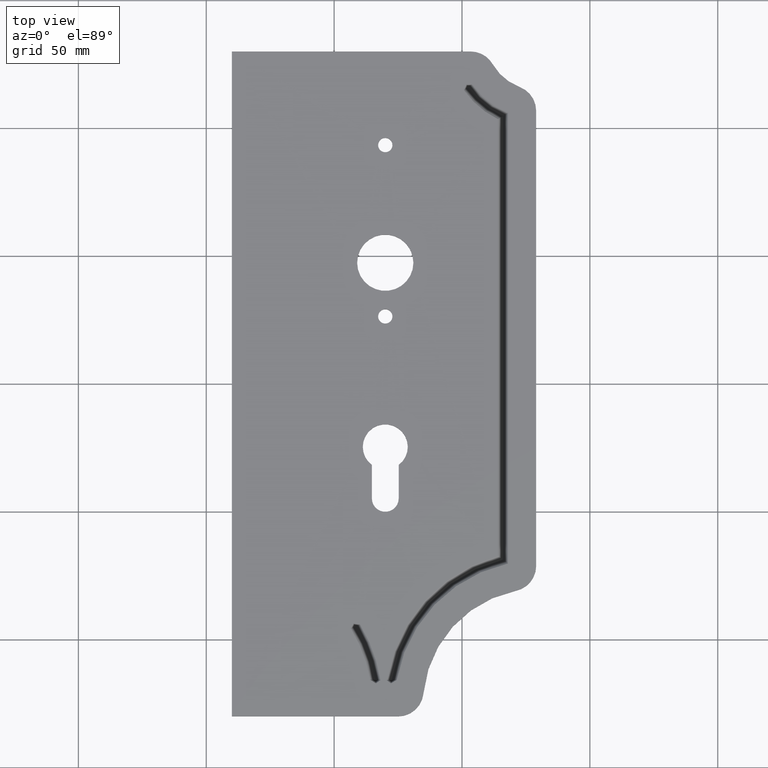
[diagram: clean part render]
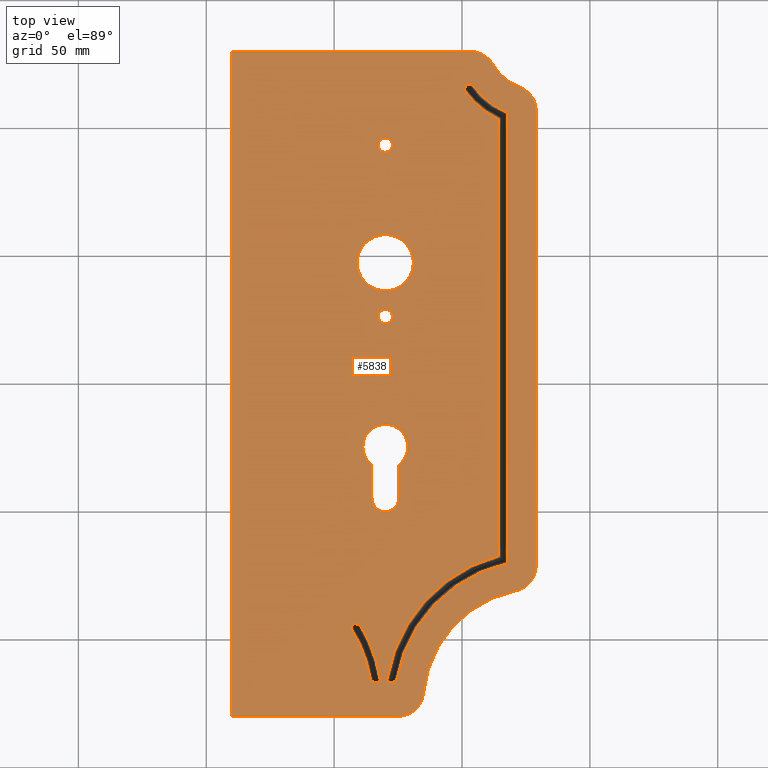
[diagram: same view with one face highlighted and labeled with its STEP entity id]
A machine part, top view. The second image highlights one B-rep face of the part: STEP entity #5838.
In plain terms, the highlighted planar face has unit normal (0, 0, 1).
Its self-contained STEP definition (entity closure, byte-faithful):
#29 = CARTESIAN_POINT ( 'NONE',  ( 109.3191852192213105, -93.96832662858865604, 3.999999999999998224 ) ) ;
#49 = CARTESIAN_POINT ( 'NONE',  ( 60.00000000000001421, 130.0000000000000000, 4.000000000000000000 ) ) ;
#54 = VERTEX_POINT ( 'NONE', #3368 ) ;
#55 = DIRECTION ( 'NONE',  ( -1.000000000000000000, -2.135044278125300850E-16, 0.000000000000000000 ) ) ;
#86 = DIRECTION ( 'NONE',  ( -1.000000000000000000, 0.000000000000000000, 0.000000000000000000 ) ) ;
#107 = EDGE_CURVE ( 'NONE', #3027, #143, #5135, .T. ) ;
#118 = EDGE_CURVE ( 'NONE', #3118, #5090, #4694, .T. ) ;
#143 = VERTEX_POINT ( 'NONE', #4100 ) ;
#219 = AXIS2_PLACEMENT_3D ( 'NONE', #2775, #2750, #3377 ) ;
#222 = CIRCLE ( 'NONE', #2403, 9.999999999999994671 ) ;
#252 = DIRECTION ( 'NONE',  ( -1.000000000000000000, 0.000000000000000000, 0.000000000000000000 ) ) ;
#258 = CARTESIAN_POINT ( 'NONE',  ( 125.2500000000000000, -44.74999999999995737, 4.000000000000000000 ) ) ;
#281 = AXIS2_PLACEMENT_3D ( 'NONE', #5772, #7532, #947 ) ;
#332 = VERTEX_POINT ( 'NONE', #4409 ) ;
#335 = CARTESIAN_POINT ( 'NONE',  ( 167.9484545786997671, -70.20743154608211967, 4.000000000000000000 ) ) ;
#340 = DIRECTION ( 'NONE',  ( -1.000000000000000000, -3.942553354492742052E-16, 0.000000000000000000 ) ) ;
#396 = CARTESIAN_POINT ( 'NONE',  ( 122.3911436400221504, -117.0000000000000000, 4.000000000000000000 ) ) ;
#397 = VERTEX_POINT ( 'NONE', #6359 ) ;
#416 = CARTESIAN_POINT ( 'NONE',  ( 124.9841266618795856, -130.0000000000000000, 4.000000000000000000 ) ) ;
#504 = CIRCLE ( 'NONE', #7010, 10.00000000000000888 ) ;
#506 = DIRECTION ( 'NONE',  ( -0.000000000000000000, -0.000000000000000000, -1.000000000000000000 ) ) ;
#518 = CARTESIAN_POINT ( 'NONE',  ( 150.7396877487264817, 114.9346499543968605, 4.000000000000000000 ) ) ;
#520 = EDGE_CURVE ( 'NONE', #2341, #2001, #7228, .T. ) ;
#527 = LINE ( 'NONE', #2502, #6691 ) ;
#569 = VERTEX_POINT ( 'NONE', #5213 ) ;
#570 = ORIENTED_EDGE ( 'NONE', *, *, #7569, .T. ) ;
#572 = EDGE_CURVE ( 'NONE', #6395, #3839, #7517, .T. ) ;
#626 = ORIENTED_EDGE ( 'NONE', *, *, #5712, .T. ) ;
#640 = CARTESIAN_POINT ( 'NONE',  ( 164.0941429350912131, -67.18769434212320846, 3.999999999999977351 ) ) ;
#664 = EDGE_CURVE ( 'NONE', #569, #332, #2774, .T. ) ;
#714 = DIRECTION ( 'NONE',  ( -1.000000000000000000, -3.942553354492742052E-16, 0.000000000000000000 ) ) ;
#731 = DIRECTION ( 'NONE',  ( -0.000000000000000000, -0.000000000000000000, 1.000000000000000000 ) ) ;
#742 = CARTESIAN_POINT ( 'NONE',  ( 179.3857565070730686, 134.9185815687525860, 4.000000000000000000 ) ) ;
#766 = CARTESIAN_POINT ( 'NONE',  ( 120.0000000000000000, -24.59999999999995524, 4.000000000000000000 ) ) ;
#768 = VERTEX_POINT ( 'NONE', #1316 ) ;
#781 = FACE_OUTER_BOUND ( 'NONE', #6218, .T. ) ;
#806 = CARTESIAN_POINT ( 'NONE',  ( 114.7500000000000000, -44.74999999999995737, 4.000000000000000000 ) ) ;
#816 = LINE ( 'NONE', #335, #5948 ) ;
#820 = EDGE_CURVE ( 'NONE', #397, #54, #1574, .T. ) ;
#824 = AXIS2_PLACEMENT_3D ( 'NONE', #4798, #6526, #3057 ) ;
#836 = CIRCLE ( 'NONE', #2711, 31.07740741019310349 ) ;
#850 = ORIENTED_EDGE ( 'NONE', *, *, #664, .F. ) ;
#854 = ORIENTED_EDGE ( 'NONE', *, *, #118, .T. ) ;
#878 = DIRECTION ( 'NONE',  ( 0.000000000000000000, 1.000000000000000000, 0.000000000000000000 ) ) ;
#919 = CIRCLE ( 'NONE', #4465, 56.25322955185499296 ) ;
#943 = DIRECTION ( 'NONE',  ( -1.000000000000000000, 0.000000000000000000, 0.000000000000000000 ) ) ;
#947 = DIRECTION ( 'NONE',  ( -1.000000000000000000, 0.000000000000000000, 0.000000000000000000 ) ) ;
#962 = CARTESIAN_POINT ( 'NONE',  ( 162.0340236576302289, 124.9728605229175713, 4.000000000000000000 ) ) ;
#1013 = AXIS2_PLACEMENT_3D ( 'NONE', #6966, #1504, #7525 ) ;
#1016 = LINE ( 'NONE', #1045, #2968 ) ;
#1045 = CARTESIAN_POINT ( 'NONE',  ( 61.17110191510875694, 58.47945739697835421, 4.000000000000000000 ) ) ;
#1059 = CARTESIAN_POINT ( 'NONE',  ( 58.71736026076818149, -125.1809018618902059, 4.000000000000000000 ) ) ;
#1063 = VERTEX_POINT ( 'NONE', #2090 ) ;
#1079 = CARTESIAN_POINT ( 'NONE',  ( 128.8000000000000114, -24.59999999999995168, 4.000000000000000000 ) ) ;
#1080 = CARTESIAN_POINT ( 'NONE',  ( 120.0000000000000000, -24.59999999999995524, 4.000000000000000000 ) ) ;
#1085 = CIRCLE ( 'NONE', #7120, 5.250000000000004441 ) ;
#1103 = CARTESIAN_POINT ( 'NONE',  ( 124.4720017553852074, -115.7005946255647473, 4.000000000000000000 ) ) ;
#1126 = EDGE_LOOP ( 'NONE', ( #626, #850, #1791, #4907, #2116, #2888, #7295, #3922 ) ) ;
#1185 = CARTESIAN_POINT ( 'NONE',  ( 117.0276687744241428, -116.5972138487284724, 4.000023536263711321 ) ) ;
#1213 = CARTESIAN_POINT ( 'NONE',  ( 108.9999999999999858, 47.40000000000003411, 4.000000000000000000 ) ) ;
#1221 = CARTESIAN_POINT ( 'NONE',  ( 121.6040842549360406, -116.5972091447753485, 4.000023509756452711 ) ) ;
#1242 = VECTOR ( 'NONE', #2686, 1000.000000000000000 ) ;
#1310 = CARTESIAN_POINT ( 'NONE',  ( 58.71736026076818149, -125.1809018618902059, 4.000000000000000000 ) ) ;
#1315 = EDGE_CURVE ( 'NONE', #1469, #7114, #5791, .T. ) ;
#1316 = CARTESIAN_POINT ( 'NONE',  ( 164.0941432479718003, 103.5160140191359943, 3.999999710036759026 ) ) ;
#1384 = B_SPLINE_CURVE_WITH_KNOTS ( 'NONE', 3,
 ( #6028, #5449, #4191, #6675 ),
 .UNSPECIFIED., .F., .F.,
 ( 4, 4 ),
 ( 0.000000000000000000, 1.000000000000000000 ),
 .UNSPECIFIED. ) ;
#1396 = ORIENTED_EDGE ( 'NONE', *, *, #6734, .F. ) ;
#1444 = CARTESIAN_POINT ( 'NONE',  ( 164.0941501642548133, -67.18769429800771320, 3.999998456407919623 ) ) ;
#1457 = EDGE_CURVE ( 'NONE', #5090, #5624, #1561, .T. ) ;
#1469 = VERTEX_POINT ( 'NONE', #5803 ) ;
#1479 = CARTESIAN_POINT ( 'NONE',  ( 120.0000000000000000, -24.59999999999995524, 4.000000000000000000 ) ) ;
#1504 = DIRECTION ( 'NONE',  ( -0.000000000000000000, -0.000000000000000000, -1.000000000000000000 ) ) ;
#1552 = CARTESIAN_POINT ( 'NONE',  ( 153.3581572329088090, 130.0000000000000000, 4.000000000000000000 ) ) ;
#1561 = CIRCLE ( 'NONE', #4057, 8.800000000000002487 ) ;
#1563 = VERTEX_POINT ( 'NONE', #7055 ) ;
#1574 = B_SPLINE_CURVE_WITH_KNOTS ( 'NONE', 3,
 ( #3140, #1897, #2520, #7314 ),
 .UNSPECIFIED., .F., .F.,
 ( 4, 4 ),
 ( 0.000000000000000000, 1.000000000000000000 ),
 .UNSPECIFIED. ) ;
#1582 = CARTESIAN_POINT ( 'NONE',  ( 120.0000000000000000, 26.40000000000003766, 4.000000000000000000 ) ) ;
#1616 = ORIENTED_EDGE ( 'NONE', *, *, #7743, .T. ) ;
#1633 = DIRECTION ( 'NONE',  ( 0.8397408945806941194, 0.5429873202652301112, 0.000000000000000000 ) ) ;
#1637 = AXIS2_PLACEMENT_3D ( 'NONE', #1059, #5259, #4660 ) ;
#1643 = VECTOR ( 'NONE', #5750, 1000.000000000000114 ) ;
#1670 = DIRECTION ( 'NONE',  ( -1.000000000000000000, 0.000000000000000000, 0.000000000000000000 ) ) ;
#1682 = EDGE_CURVE ( 'NONE', #3840, #6150, #6322, .T. ) ;
#1757 = CARTESIAN_POINT ( 'NONE',  ( 119.9999999999999858, 93.40000000000004832, 4.000000000000000000 ) ) ;
#1762 = EDGE_CURVE ( 'NONE', #3072, #143, #919, .T. ) ;
#1791 = ORIENTED_EDGE ( 'NONE', *, *, #5773, .T. ) ;
#1812 = DIRECTION ( 'NONE',  ( -1.000000000000000000, 0.000000000000000000, 0.000000000000000000 ) ) ;
#1830 = CIRCLE ( 'NONE', #219, 34.92785103717616124 ) ;
#1860 = AXIS2_PLACEMENT_3D ( 'NONE', #766, #4265, #714 ) ;
#1892 = AXIS2_PLACEMENT_3D ( 'NONE', #1310, #7255, #2382 ) ;
#1897 = CARTESIAN_POINT ( 'NONE',  ( 153.2529808708877965, 117.0621266309909458, 4.000000000925140853 ) ) ;
#1917 = CARTESIAN_POINT ( 'NONE',  ( 179.9222205310276763, -125.1715540673043421, 4.000000000000000000 ) ) ;
#1925 = CARTESIAN_POINT ( 'NONE',  ( 122.7999999999999829, 93.40000000000004832, 4.000000000000000000 ) ) ;
#1945 = VERTEX_POINT ( 'NONE', #3490 ) ;
#1956 = ORIENTED_EDGE ( 'NONE', *, *, #5073, .F. ) ;
#1971 = DIRECTION ( 'NONE',  ( 0.000000000000000000, 0.000000000000000000, 1.000000000000000000 ) ) ;
#1994 = VERTEX_POINT ( 'NONE', #4142 ) ;
#2001 = VERTEX_POINT ( 'NONE', #49 ) ;
#2006 = ORIENTED_EDGE ( 'NONE', *, *, #4708, .T. ) ;
#2012 = AXIS2_PLACEMENT_3D ( 'NONE', #7625, #2149, #3425 ) ;
#2019 = CIRCLE ( 'NONE', #5776, 8.800000000000002487 ) ;
#2039 = VECTOR ( 'NONE', #5364, 1000.000000000000000 ) ;
#2083 = B_SPLINE_CURVE_WITH_KNOTS ( 'NONE', 3,
 ( #5939, #1185, #2982, #5916 ),
 .UNSPECIFIED., .F., .F.,
 ( 4, 4 ),
 ( 0.000000000000000000, 1.000000000000000000 ),
 .UNSPECIFIED. ) ;
#2090 = CARTESIAN_POINT ( 'NONE',  ( 130.9999999999999716, 47.40000000000004121, 4.000000000000000000 ) ) ;
#2115 = VERTEX_POINT ( 'NONE', #6815 ) ;
#2116 = ORIENTED_EDGE ( 'NONE', *, *, #5060, .F. ) ;
#2131 = DIRECTION ( 'NONE',  ( -0.000000000000000000, -0.000000000000000000, 1.000000000000000000 ) ) ;
#2149 = DIRECTION ( 'NONE',  ( -0.000000000000000000, -0.000000000000000000, 1.000000000000000000 ) ) ;
#2182 = DIRECTION ( 'NONE',  ( -1.000000000000000000, 0.000000000000000000, 0.000000000000000000 ) ) ;
#2243 = LINE ( 'NONE', #640, #2724 ) ;
#2244 = EDGE_CURVE ( 'NONE', #7303, #768, #1830, .T. ) ;
#2255 = EDGE_CURVE ( 'NONE', #1063, #7370, #4828, .T. ) ;
#2292 = CARTESIAN_POINT ( 'NONE',  ( 123.0848446471938189, -116.5658507333342726, 3.999952035390606397 ) ) ;
#2293 = ORIENTED_EDGE ( 'NONE', *, *, #3217, .F. ) ;
#2314 = EDGE_CURVE ( 'NONE', #1945, #1563, #5746, .T. ) ;
#2341 = VERTEX_POINT ( 'NONE', #1552 ) ;
#2345 = ORIENTED_EDGE ( 'NONE', *, *, #107, .F. ) ;
#2382 = DIRECTION ( 'NONE',  ( -1.000000000000000000, 0.000000000000000000, 0.000000000000000000 ) ) ;
#2403 = AXIS2_PLACEMENT_3D ( 'NONE', #4777, #3598, #6017 ) ;
#2413 = CARTESIAN_POINT ( 'NONE',  ( 107.7087172581526175, -93.73277605479452745, 4.000000000000000000 ) ) ;
#2446 = DIRECTION ( 'NONE',  ( -0.000000000000000000, -0.000000000000000000, -1.000000000000000000 ) ) ;
#2495 = CARTESIAN_POINT ( 'NONE',  ( 179.9222205310276763, -116.9999999999999574, 4.000000000000000000 ) ) ;
#2502 = CARTESIAN_POINT ( 'NONE',  ( 178.9999999999999716, 114.9223021168833014, 4.000000000000000000 ) ) ;
#2508 = EDGE_CURVE ( 'NONE', #3072, #1994, #816, .T. ) ;
#2520 = CARTESIAN_POINT ( 'NONE',  ( 152.5166984785244608, 117.0508261015987870, 3.999999669239220346 ) ) ;
#2527 = VERTEX_POINT ( 'NONE', #6934 ) ;
#2637 = CIRCLE ( 'NONE', #4976, 19.99999999999998934 ) ;
#2638 = ORIENTED_EDGE ( 'NONE', *, *, #1682, .T. ) ;
#2686 = DIRECTION ( 'NONE',  ( -1.000000000000000000, -2.775557561562891844E-16, -0.000000000000000000 ) ) ;
#2696 = ORIENTED_EDGE ( 'NONE', *, *, #572, .T. ) ;
#2705 = CARTESIAN_POINT ( 'NONE',  ( 155.4844499917810765, -71.84057662585097148, 4.000000000000000000 ) ) ;
#2711 = AXIS2_PLACEMENT_3D ( 'NONE', #2961, #4060, #7661 ) ;
#2724 = VECTOR ( 'NONE', #3557, 1000.000000000000000 ) ;
#2750 = DIRECTION ( 'NONE',  ( 0.000000000000000000, 0.000000000000000000, 1.000000000000000000 ) ) ;
#2753 = AXIS2_PLACEMENT_3D ( 'NONE', #1757, #3566, #1812 ) ;
#2774 = B_SPLINE_CURVE_WITH_KNOTS ( 'NONE', 3,
 ( #4626, #7107, #5857, #4015 ),
 .UNSPECIFIED., .F., .F.,
 ( 4, 4 ),
 ( 0.000000000000000000, 1.000000000000000000 ),
 .UNSPECIFIED. ) ;
#2775 = CARTESIAN_POINT ( 'NONE',  ( 179.3857565070730686, 134.9185815687525860, 4.000000000000000000 ) ) ;
#2811 = VECTOR ( 'NONE', #6304, 1000.000000000000000 ) ;
#2830 = EDGE_LOOP ( 'NONE', ( #7246, #5169 ) ) ;
#2888 = ORIENTED_EDGE ( 'NONE', *, *, #1315, .F. ) ;
#2902 = FACE_BOUND ( 'NONE', #5240, .T. ) ;
#2919 = DIRECTION ( 'NONE',  ( -1.000000000000000000, 0.000000000000000000, 0.000000000000000000 ) ) ;
#2950 = EDGE_CURVE ( 'NONE', #3839, #6395, #3149, .T. ) ;
#2951 = CARTESIAN_POINT ( 'NONE',  ( 153.3581572329088090, 120.0000000000000568, 4.000000000000000000 ) ) ;
#2961 = CARTESIAN_POINT ( 'NONE',  ( 179.3857565070730686, 134.9185815687525860, 4.000000000000002665 ) ) ;
#2968 = VECTOR ( 'NONE', #1633, 1000.000000000000000 ) ;
#2969 = CARTESIAN_POINT ( 'NONE',  ( 178.9999999999999716, 106.7736697412874491, 4.000000000000000000 ) ) ;
#2982 = CARTESIAN_POINT ( 'NONE',  ( 117.5503157600747102, -116.1949691371234366, 4.000022947027190412 ) ) ;
#3003 = CARTESIAN_POINT ( 'NONE',  ( 110.1425200170997556, -94.08953221886777385, 4.000000000000000000 ) ) ;
#3027 = VERTEX_POINT ( 'NONE', #396 ) ;
#3045 = CARTESIAN_POINT ( 'NONE',  ( 179.9222205310276763, -116.9999999999999858, 4.000000000000000000 ) ) ;
#3057 = DIRECTION ( 'NONE',  ( -1.000000000000000000, 0.000000000000000000, 0.000000000000000000 ) ) ;
#3072 = VERTEX_POINT ( 'NONE', #4846 ) ;
#3113 = DIRECTION ( 'NONE',  ( 1.000000000000000000, 3.700743415417188632E-16, 0.000000000000000000 ) ) ;
#3118 = VERTEX_POINT ( 'NONE', #806 ) ;
#3132 = CARTESIAN_POINT ( 'NONE',  ( -59.92222053102767632, -125.1715540673043421, 4.000000000000000000 ) ) ;
#3140 = CARTESIAN_POINT ( 'NONE',  ( 153.9431499922950195, 117.0726009267901446, 4.000000000000002665 ) ) ;
#3149 = CIRCLE ( 'NONE', #281, 2.799999999999997158 ) ;
#3151 = EDGE_CURVE ( 'NONE', #4495, #6394, #2019, .T. ) ;
#3156 = LINE ( 'NONE', #2705, #1643 ) ;
#3214 = CARTESIAN_POINT ( 'NONE',  ( -39.99999999999999289, 130.0000000000000000, 4.000000000000000000 ) ) ;
#3217 = EDGE_CURVE ( 'NONE', #3579, #3722, #7458, .T. ) ;
#3218 = VERTEX_POINT ( 'NONE', #962 ) ;
#3222 = ORIENTED_EDGE ( 'NONE', *, *, #1762, .T. ) ;
#3242 = EDGE_LOOP ( 'NONE', ( #3682, #2696 ) ) ;
#3256 = EDGE_LOOP ( 'NONE', ( #2293, #1616, #6247, #5285, #2006, #5367, #3776, #4246, #3222, #2345, #4826, #7647 ) ) ;
#3269 = DIRECTION ( 'NONE',  ( -0.000000000000000000, -0.000000000000000000, 1.000000000000000000 ) ) ;
#3297 = CIRCLE ( 'NONE', #1892, 56.26977279256212938 ) ;
#3298 = EDGE_CURVE ( 'NONE', #3366, #3118, #1085, .T. ) ;
#3318 = ORIENTED_EDGE ( 'NONE', *, *, #520, .T. ) ;
#3336 = VERTEX_POINT ( 'NONE', #4153 ) ;
#3342 = ORIENTED_EDGE ( 'NONE', *, *, #1457, .T. ) ;
#3366 = VERTEX_POINT ( 'NONE', #3555 ) ;
#3368 = CARTESIAN_POINT ( 'NONE',  ( 151.7342106217812727, 117.0387344655068489, 4.000000000000000000 ) ) ;
#3377 = DIRECTION ( 'NONE',  ( -1.000000000000000000, 0.000000000000000000, 0.000000000000000000 ) ) ;
#3384 = CIRCLE ( 'NONE', #4956, 10.99999999999999645 ) ;
#3395 = EDGE_CURVE ( 'NONE', #2341, #3218, #7254, .T. ) ;
#3405 = CARTESIAN_POINT ( 'NONE',  ( 134.9401127132668421, -120.9371988820855535, 4.000000000000000000 ) ) ;
#3417 = CARTESIAN_POINT ( 'NONE',  ( 168.9999999999999432, 106.7736697412874491, 4.000000000000000000 ) ) ;
#3425 = DIRECTION ( 'NONE',  ( 1.000000000000000000, 0.000000000000000000, 0.000000000000000000 ) ) ;
#3466 = ORIENTED_EDGE ( 'NONE', *, *, #4769, .F. ) ;
#3482 = CARTESIAN_POINT ( 'NONE',  ( 117.1999999999999886, 93.40000000000004832, 4.000000000000000000 ) ) ;
#3490 = CARTESIAN_POINT ( 'NONE',  ( 107.4815538454759150, -93.83686879076584830, 4.000000000000000000 ) ) ;
#3501 = EDGE_CURVE ( 'NONE', #4841, #6847, #527, .T. ) ;
#3524 = DIRECTION ( 'NONE',  ( -2.135044278125300850E-16, 1.000000000000000000, 0.000000000000000000 ) ) ;
#3555 = CARTESIAN_POINT ( 'NONE',  ( 125.2500000000000000, -44.74999999999995737, 4.000000000000000000 ) ) ;
#3557 = DIRECTION ( 'NONE',  ( -9.347942410577991442E-17, 1.000000000000000000, 0.000000000000000000 ) ) ;
#3566 = DIRECTION ( 'NONE',  ( -0.000000000000000000, -0.000000000000000000, -1.000000000000000000 ) ) ;
#3579 = VERTEX_POINT ( 'NONE', #1444 ) ;
#3598 = DIRECTION ( 'NONE',  ( -0.000000000000000000, -0.000000000000000000, -1.000000000000000000 ) ) ;
#3644 = AXIS2_PLACEMENT_3D ( 'NONE', #3132, #1971, #4333 ) ;
#3682 = ORIENTED_EDGE ( 'NONE', *, *, #2950, .T. ) ;
#3688 = EDGE_CURVE ( 'NONE', #6150, #3840, #6496, .T. ) ;
#3697 = CARTESIAN_POINT ( 'NONE',  ( 122.7999999999999972, 26.40000000000003766, 4.000000000000000000 ) ) ;
#3722 = VERTEX_POINT ( 'NONE', #5323 ) ;
#3758 = VECTOR ( 'NONE', #3113, 1000.000000000000000 ) ;
#3776 = ORIENTED_EDGE ( 'NONE', *, *, #3963, .T. ) ;
#3806 = ORIENTED_EDGE ( 'NONE', *, *, #3501, .F. ) ;
#3839 = VERTEX_POINT ( 'NONE', #3697 ) ;
#3840 = VERTEX_POINT ( 'NONE', #1925 ) ;
#3881 = CARTESIAN_POINT ( 'NONE',  ( 179.9222205310276763, -125.1715540673043421, 4.000000000000000000 ) ) ;
#3922 = ORIENTED_EDGE ( 'NONE', *, *, #5356, .F. ) ;
#3963 = EDGE_CURVE ( 'NONE', #397, #1994, #836, .T. ) ;
#4015 = CARTESIAN_POINT ( 'NONE',  ( 116.2554575510748549, -116.9999999999999716, 4.000000000000000000 ) ) ;
#4057 = AXIS2_PLACEMENT_3D ( 'NONE', #1080, #5254, #7639 ) ;
#4060 = DIRECTION ( 'NONE',  ( 0.000000000000000000, 0.000000000000000000, 1.000000000000000000 ) ) ;
#4100 = CARTESIAN_POINT ( 'NONE',  ( 124.4720017553852074, -115.7005946255647473, 4.000000000000000000 ) ) ;
#4104 = EDGE_CURVE ( 'NONE', #2115, #3027, #6906, .T. ) ;
#4142 = CARTESIAN_POINT ( 'NONE',  ( 167.9484426974334212, 106.0223485262961276, 3.999999999997017941 ) ) ;
#4153 = CARTESIAN_POINT ( 'NONE',  ( 116.5050635547204365, -116.9999999999999716, 4.000000000000000000 ) ) ;
#4185 = DIRECTION ( 'NONE',  ( -1.000000000000000000, 0.000000000000000000, 0.000000000000000000 ) ) ;
#4191 = CARTESIAN_POINT ( 'NONE',  ( 151.0654738093247431, 115.6650355827222256, 4.000000000917134813 ) ) ;
#4203 = CARTESIAN_POINT ( 'NONE',  ( 108.5079199419400595, -93.84941290520818313, 3.999999999999998224 ) ) ;
#4230 = LINE ( 'NONE', #4289, #3758 ) ;
#4240 = FACE_BOUND ( 'NONE', #5898, .T. ) ;
#4246 = ORIENTED_EDGE ( 'NONE', *, *, #2508, .F. ) ;
#4265 = DIRECTION ( 'NONE',  ( -0.000000000000000000, -0.000000000000000000, -1.000000000000000000 ) ) ;
#4289 = CARTESIAN_POINT ( 'NONE',  ( -14.99999999999998579, -130.0000000000000000, 4.000000000000000000 ) ) ;
#4319 = VECTOR ( 'NONE', #55, 1000.000000000000000 ) ;
#4322 = DIRECTION ( 'NONE',  ( 1.423079169099819574E-16, -1.000000000000000000, 0.000000000000000000 ) ) ;
#4333 = DIRECTION ( 'NONE',  ( 1.000000000000000000, 0.000000000000000000, -0.000000000000000000 ) ) ;
#4409 = CARTESIAN_POINT ( 'NONE',  ( 116.2554575510748549, -116.9999999999999716, 4.000000000000000000 ) ) ;
#4465 = AXIS2_PLACEMENT_3D ( 'NONE', #1917, #731, #7252 ) ;
#4495 = VERTEX_POINT ( 'NONE', #1079 ) ;
#4506 = LINE ( 'NONE', #258, #2811 ) ;
#4598 = CARTESIAN_POINT ( 'NONE',  ( 60.00000000000001421, -130.0000000000000000, 4.000000000000000000 ) ) ;
#4609 = AXIS2_PLACEMENT_3D ( 'NONE', #1582, #5777, #2182 ) ;
#4626 = CARTESIAN_POINT ( 'NONE',  ( 114.1826580309322736, -115.6999697667006046, 4.000000000000000000 ) ) ;
#4660 = DIRECTION ( 'NONE',  ( -1.000000000000000000, 0.000000000000000000, 0.000000000000000000 ) ) ;
#4694 = LINE ( 'NONE', #5328, #5823 ) ;
#4708 = EDGE_CURVE ( 'NONE', #5499, #54, #1016, .T. ) ;
#4734 = DIRECTION ( 'NONE',  ( -0.000000000000000000, -0.000000000000000000, -1.000000000000000000 ) ) ;
#4765 = ORIENTED_EDGE ( 'NONE', *, *, #6633, .T. ) ;
#4769 = EDGE_CURVE ( 'NONE', #6845, #2001, #7376, .T. ) ;
#4777 = CARTESIAN_POINT ( 'NONE',  ( 124.9841266618795856, -120.0000000000000000, 4.000000000000000000 ) ) ;
#4779 = ORIENTED_EDGE ( 'NONE', *, *, #6669, .T. ) ;
#4798 = CARTESIAN_POINT ( 'NONE',  ( 119.9999999999999858, 93.40000000000004832, 4.000000000000000000 ) ) ;
#4826 = ORIENTED_EDGE ( 'NONE', *, *, #4104, .F. ) ;
#4828 = CIRCLE ( 'NONE', #1013, 10.99999999999999645 ) ;
#4841 = VERTEX_POINT ( 'NONE', #2969 ) ;
#4846 = CARTESIAN_POINT ( 'NONE',  ( 167.9484634677664303, -70.20743199001164214, 4.000001931640524866 ) ) ;
#4877 = CARTESIAN_POINT ( 'NONE',  ( 121.0785662360196255, -116.1949635708193824, 4.000022914253521300 ) ) ;
#4907 = ORIENTED_EDGE ( 'NONE', *, *, #2314, .F. ) ;
#4955 = ORIENTED_EDGE ( 'NONE', *, *, #3151, .T. ) ;
#4956 = AXIS2_PLACEMENT_3D ( 'NONE', #5327, #6499, #2919 ) ;
#4976 = AXIS2_PLACEMENT_3D ( 'NONE', #742, #3269, #252 ) ;
#5060 = EDGE_CURVE ( 'NONE', #7114, #1945, #3156, .T. ) ;
#5072 = CIRCLE ( 'NONE', #1860, 8.800000000000002487 ) ;
#5073 = EDGE_CURVE ( 'NONE', #7154, #6074, #5252, .T. ) ;
#5074 = ORIENTED_EDGE ( 'NONE', *, *, #5612, .F. ) ;
#5090 = VERTEX_POINT ( 'NONE', #7393 ) ;
#5128 = CARTESIAN_POINT ( 'NONE',  ( 122.3911436400221504, -117.0000000000000000, 4.000000000000000000 ) ) ;
#5135 = B_SPLINE_CURVE_WITH_KNOTS ( 'NONE', 3,
 ( #5128, #2292, #6555, #1103 ),
 .UNSPECIFIED., .F., .F.,
 ( 4, 4 ),
 ( 0.000000000000000000, 1.000000000000000000 ),
 .UNSPECIFIED. ) ;
#5169 = ORIENTED_EDGE ( 'NONE', *, *, #6516, .T. ) ;
#5183 = VERTEX_POINT ( 'NONE', #416 ) ;
#5201 = EDGE_CURVE ( 'NONE', #6489, #1469, #5910, .T. ) ;
#5213 = CARTESIAN_POINT ( 'NONE',  ( 114.1826580309322736, -115.6999697667006046, 4.000000000000000000 ) ) ;
#5222 = CARTESIAN_POINT ( 'NONE',  ( 125.2500000000000000, -31.66240044177611068, 4.000000000000000000 ) ) ;
#5240 = EDGE_LOOP ( 'NONE', ( #854, #3342, #4765, #4955, #570, #5593 ) ) ;
#5252 = CIRCLE ( 'NONE', #6443, 45.18096709415647894 ) ;
#5254 = DIRECTION ( 'NONE',  ( -0.000000000000000000, -0.000000000000000000, -1.000000000000000000 ) ) ;
#5259 = DIRECTION ( 'NONE',  ( 0.000000000000000000, 0.000000000000000000, 1.000000000000000000 ) ) ;
#5285 = ORIENTED_EDGE ( 'NONE', *, *, #7377, .F. ) ;
#5323 = CARTESIAN_POINT ( 'NONE',  ( 120.5530095320388284, -115.7932379103817340, 4.000000000000000000 ) ) ;
#5327 = CARTESIAN_POINT ( 'NONE',  ( 119.9999999999999858, 47.40000000000004121, 4.000000000000000000 ) ) ;
#5328 = CARTESIAN_POINT ( 'NONE',  ( 114.7500000000000000, -44.74999999999995737, 4.000000000000000000 ) ) ;
#5356 = EDGE_CURVE ( 'NONE', #3336, #6489, #2083, .T. ) ;
#5364 = DIRECTION ( 'NONE',  ( 1.000000000000000000, 2.135044278125300850E-16, 0.000000000000000000 ) ) ;
#5367 = ORIENTED_EDGE ( 'NONE', *, *, #820, .F. ) ;
#5432 = DIRECTION ( 'NONE',  ( -0.000000000000000000, -0.000000000000000000, -1.000000000000000000 ) ) ;
#5449 = CARTESIAN_POINT ( 'NONE',  ( 151.3700388932257113, 116.3490118396536559, 4.000000000000000000 ) ) ;
#5499 = VERTEX_POINT ( 'NONE', #6673 ) ;
#5510 = CARTESIAN_POINT ( 'NONE',  ( 107.7087172581526175, -93.73277605479452745, 4.000000000000000000 ) ) ;
#5593 = ORIENTED_EDGE ( 'NONE', *, *, #3298, .T. ) ;
#5612 = EDGE_CURVE ( 'NONE', #6847, #7154, #504, .T. ) ;
#5624 = VERTEX_POINT ( 'NONE', #6665 ) ;
#5712 = EDGE_CURVE ( 'NONE', #3336, #332, #7518, .T. ) ;
#5738 = EDGE_CURVE ( 'NONE', #3722, #2115, #6943, .T. ) ;
#5746 = B_SPLINE_CURVE_WITH_KNOTS ( 'NONE', 3,
 ( #5765, #5792, #7501, #6285 ),
 .UNSPECIFIED., .F., .F.,
 ( 4, 4 ),
 ( 0.000000000000000000, 1.000000000000000000 ),
 .UNSPECIFIED. ) ;
#5750 = DIRECTION ( 'NONE',  ( -0.9091009384687440686, -0.4165759038581670071, 0.000000000000000000 ) ) ;
#5765 = CARTESIAN_POINT ( 'NONE',  ( 107.4815538454759150, -93.83686879076584830, 4.000000000000000000 ) ) ;
#5772 = CARTESIAN_POINT ( 'NONE',  ( 120.0000000000000000, 26.40000000000003766, 4.000000000000000000 ) ) ;
#5773 = EDGE_CURVE ( 'NONE', #569, #1563, #3297, .T. ) ;
#5776 = AXIS2_PLACEMENT_3D ( 'NONE', #1479, #7499, #340 ) ;
#5777 = DIRECTION ( 'NONE',  ( -0.000000000000000000, -0.000000000000000000, -1.000000000000000000 ) ) ;
#5786 = DIRECTION ( 'NONE',  ( -9.347942410577991442E-17, 1.000000000000000000, 0.000000000000000000 ) ) ;
#5791 = B_SPLINE_CURVE_WITH_KNOTS ( 'NONE', 3,
 ( #3003, #29, #4203, #2413 ),
 .UNSPECIFIED., .F., .F.,
 ( 4, 4 ),
 ( 0.000000000000000000, 1.000000000000000000 ),
 .UNSPECIFIED. ) ;
#5792 = CARTESIAN_POINT ( 'NONE',  ( 107.1706170012488855, -94.41761401850419588, 3.999999999325903222 ) ) ;
#5803 = CARTESIAN_POINT ( 'NONE',  ( 110.1425200170997556, -94.08953221886777385, 4.000000000000000000 ) ) ;
#5809 = CARTESIAN_POINT ( 'NONE',  ( 117.2000000000000028, 26.40000000000003766, 4.000000000000000000 ) ) ;
#5823 = VECTOR ( 'NONE', #3524, 1000.000000000000000 ) ;
#5828 = FACE_BOUND ( 'NONE', #3242, .T. ) ;
#5838 = ADVANCED_FACE ( 'NONE', ( #781, #5828, #7697, #2902, #4240, #7511, #5901 ), #6109, .T. ) ;
#5857 = CARTESIAN_POINT ( 'NONE',  ( 115.5644425003979308, -116.5656468390983065, 3.999951886224072162 ) ) ;
#5898 = EDGE_LOOP ( 'NONE', ( #2638, #7206 ) ) ;
#5901 = FACE_BOUND ( 'NONE', #1126, .T. ) ;
#5902 = CIRCLE ( 'NONE', #7234, 10.00000000000000888 ) ;
#5910 = CIRCLE ( 'NONE', #1637, 60.09342994240952152 ) ;
#5916 = CARTESIAN_POINT ( 'NONE',  ( 118.0730014882871188, -115.7932409863932008, 4.000000000000000000 ) ) ;
#5939 = CARTESIAN_POINT ( 'NONE',  ( 116.5050635547204365, -116.9999999999999716, 4.000000000000000000 ) ) ;
#5948 = VECTOR ( 'NONE', #5786, 1000.000000000000000 ) ;
#6017 = DIRECTION ( 'NONE',  ( -1.000000000000000000, 0.000000000000000000, 0.000000000000000000 ) ) ;
#6023 = ORIENTED_EDGE ( 'NONE', *, *, #6561, .F. ) ;
#6028 = CARTESIAN_POINT ( 'NONE',  ( 151.6534660614719030, 116.9865239887855779, 4.000000000000000000 ) ) ;
#6060 = CARTESIAN_POINT ( 'NONE',  ( 122.1295605234315929, -117.0000000000000000, 4.000000000000000000 ) ) ;
#6074 = VERTEX_POINT ( 'NONE', #3405 ) ;
#6109 = PLANE ( 'NONE',  #3644 ) ;
#6150 = VERTEX_POINT ( 'NONE', #3482 ) ;
#6156 = VECTOR ( 'NONE', #878, 1000.000000000000000 ) ;
#6212 = CARTESIAN_POINT ( 'NONE',  ( 170.9793456161054337, -80.88448173440670530, 4.000000000000000000 ) ) ;
#6214 = ORIENTED_EDGE ( 'NONE', *, *, #6917, .F. ) ;
#6218 = EDGE_LOOP ( 'NONE', ( #3466, #4779, #6023, #1956, #5074, #3806, #6214, #1396, #7073, #3318 ) ) ;
#6247 = ORIENTED_EDGE ( 'NONE', *, *, #2244, .F. ) ;
#6285 = CARTESIAN_POINT ( 'NONE',  ( 106.5600011767942021, -95.56048592445341683, 4.000000000000000000 ) ) ;
#6304 = DIRECTION ( 'NONE',  ( 2.135044278125300850E-16, -1.000000000000000000, -0.000000000000000000 ) ) ;
#6322 = CIRCLE ( 'NONE', #2753, 2.799999999999997158 ) ;
#6359 = CARTESIAN_POINT ( 'NONE',  ( 153.9431499922950195, 117.0726009267901446, 4.000000000000002665 ) ) ;
#6394 = VERTEX_POINT ( 'NONE', #5222 ) ;
#6395 = VERTEX_POINT ( 'NONE', #5809 ) ;
#6440 = CARTESIAN_POINT ( 'NONE',  ( 60.00000000000001421, -165.9372563263161737, 4.000000000000000000 ) ) ;
#6443 = AXIS2_PLACEMENT_3D ( 'NONE', #3881, #2131, #943 ) ;
#6489 = VERTEX_POINT ( 'NONE', #7214 ) ;
#6495 = CARTESIAN_POINT ( 'NONE',  ( 179.0000000000000000, -71.08232937219540304, 4.000000000000000000 ) ) ;
#6496 = CIRCLE ( 'NONE', #824, 2.799999999999997158 ) ;
#6499 = DIRECTION ( 'NONE',  ( -0.000000000000000000, -0.000000000000000000, -1.000000000000000000 ) ) ;
#6506 = CARTESIAN_POINT ( 'NONE',  ( 120.0000000000000142, -44.74999999999995737, 4.000000000000000000 ) ) ;
#6516 = EDGE_CURVE ( 'NONE', #7370, #1063, #3384, .T. ) ;
#6526 = DIRECTION ( 'NONE',  ( -0.000000000000000000, -0.000000000000000000, -1.000000000000000000 ) ) ;
#6555 = CARTESIAN_POINT ( 'NONE',  ( 123.7784668241241519, -116.1326936763412618, 3.999950257044833535 ) ) ;
#6561 = EDGE_CURVE ( 'NONE', #6074, #5183, #222, .T. ) ;
#6633 = EDGE_CURVE ( 'NONE', #5624, #4495, #5072, .T. ) ;
#6634 = CARTESIAN_POINT ( 'NONE',  ( 120.5530095320388284, -115.7932379103817340, 4.000000000000000000 ) ) ;
#6638 = CARTESIAN_POINT ( 'NONE',  ( 168.9999999999999716, -71.08232937219541725, 4.000000000000000000 ) ) ;
#6665 = CARTESIAN_POINT ( 'NONE',  ( 111.1999999999999886, -24.59999999999995879, 4.000000000000000000 ) ) ;
#6669 = EDGE_CURVE ( 'NONE', #6845, #5183, #4230, .T. ) ;
#6673 = CARTESIAN_POINT ( 'NONE',  ( 151.6534660614719030, 116.9865239887855779, 4.000000000000000000 ) ) ;
#6675 = CARTESIAN_POINT ( 'NONE',  ( 150.7396877487264817, 114.9346499543968605, 4.000000000000000000 ) ) ;
#6691 = VECTOR ( 'NONE', #4322, 1000.000000000000000 ) ;
#6734 = EDGE_CURVE ( 'NONE', #3218, #2527, #2637, .T. ) ;
#6815 = CARTESIAN_POINT ( 'NONE',  ( 122.1295605234315929, -117.0000000000000000, 4.000000000000000000 ) ) ;
#6845 = VERTEX_POINT ( 'NONE', #4598 ) ;
#6847 = VERTEX_POINT ( 'NONE', #6495 ) ;
#6906 = LINE ( 'NONE', #3045, #2039 ) ;
#6917 = EDGE_CURVE ( 'NONE', #2527, #4841, #5902, .T. ) ;
#6934 = CARTESIAN_POINT ( 'NONE',  ( 172.4619188356909945, 116.1553070171091804, 4.000000000000000000 ) ) ;
#6943 = B_SPLINE_CURVE_WITH_KNOTS ( 'NONE', 3,
 ( #6634, #4877, #1221, #6060 ),
 .UNSPECIFIED., .F., .F.,
 ( 4, 4 ),
 ( 0.000000000000000000, 1.000000000000000000 ),
 .UNSPECIFIED. ) ;
#6966 = CARTESIAN_POINT ( 'NONE',  ( 119.9999999999999858, 47.40000000000004121, 4.000000000000000000 ) ) ;
#6977 = AXIS2_PLACEMENT_3D ( 'NONE', #2951, #2446, #4185 ) ;
#7007 = DIRECTION ( 'NONE',  ( -1.000000000000000000, 0.000000000000000000, 0.000000000000000000 ) ) ;
#7010 = AXIS2_PLACEMENT_3D ( 'NONE', #6638, #5432, #86 ) ;
#7055 = CARTESIAN_POINT ( 'NONE',  ( 106.5600011767942021, -95.56048592445341683, 4.000000000000000000 ) ) ;
#7073 = ORIENTED_EDGE ( 'NONE', *, *, #3395, .F. ) ;
#7107 = CARTESIAN_POINT ( 'NONE',  ( 114.8735065441064336, -116.1322818073132765, 3.999950123424634629 ) ) ;
#7114 = VERTEX_POINT ( 'NONE', #5510 ) ;
#7120 = AXIS2_PLACEMENT_3D ( 'NONE', #6506, #4734, #1670 ) ;
#7154 = VERTEX_POINT ( 'NONE', #6212 ) ;
#7206 = ORIENTED_EDGE ( 'NONE', *, *, #3688, .T. ) ;
#7214 = CARTESIAN_POINT ( 'NONE',  ( 118.0730014882871188, -115.7932409863932008, 4.000000000000000000 ) ) ;
#7228 = LINE ( 'NONE', #3214, #1242 ) ;
#7234 = AXIS2_PLACEMENT_3D ( 'NONE', #3417, #506, #7007 ) ;
#7246 = ORIENTED_EDGE ( 'NONE', *, *, #2255, .T. ) ;
#7252 = DIRECTION ( 'NONE',  ( 1.000000000000000000, 0.000000000000000000, 0.000000000000000000 ) ) ;
#7254 = CIRCLE ( 'NONE', #6977, 10.00000000000000888 ) ;
#7255 = DIRECTION ( 'NONE',  ( 0.000000000000000000, 0.000000000000000000, 1.000000000000000000 ) ) ;
#7295 = ORIENTED_EDGE ( 'NONE', *, *, #5201, .F. ) ;
#7303 = VERTEX_POINT ( 'NONE', #518 ) ;
#7314 = CARTESIAN_POINT ( 'NONE',  ( 151.7342106217812727, 117.0387344655068489, 4.000000000000000000 ) ) ;
#7370 = VERTEX_POINT ( 'NONE', #1213 ) ;
#7376 = LINE ( 'NONE', #6440, #6156 ) ;
#7377 = EDGE_CURVE ( 'NONE', #5499, #7303, #1384, .T. ) ;
#7393 = CARTESIAN_POINT ( 'NONE',  ( 114.7500000000000000, -31.66240044177611068, 4.000000000000000000 ) ) ;
#7458 = CIRCLE ( 'NONE', #2012, 60.10537437352550683 ) ;
#7499 = DIRECTION ( 'NONE',  ( -0.000000000000000000, -0.000000000000000000, -1.000000000000000000 ) ) ;
#7501 = CARTESIAN_POINT ( 'NONE',  ( 106.8634340573914585, -94.99215575435616188, 4.000000000936600131 ) ) ;
#7511 = FACE_BOUND ( 'NONE', #3256, .T. ) ;
#7517 = CIRCLE ( 'NONE', #4609, 2.799999999999997158 ) ;
#7518 = LINE ( 'NONE', #2495, #4319 ) ;
#7525 = DIRECTION ( 'NONE',  ( -1.000000000000000000, 0.000000000000000000, 0.000000000000000000 ) ) ;
#7532 = DIRECTION ( 'NONE',  ( -0.000000000000000000, -0.000000000000000000, -1.000000000000000000 ) ) ;
#7569 = EDGE_CURVE ( 'NONE', #6394, #3366, #4506, .T. ) ;
#7625 = CARTESIAN_POINT ( 'NONE',  ( 179.9222205310276763, -125.1715540673043421, 4.000000000000000000 ) ) ;
#7639 = DIRECTION ( 'NONE',  ( -1.000000000000000000, -3.942553354492742052E-16, 0.000000000000000000 ) ) ;
#7647 = ORIENTED_EDGE ( 'NONE', *, *, #5738, .F. ) ;
#7661 = DIRECTION ( 'NONE',  ( -1.000000000000000000, 0.000000000000000000, 0.000000000000000000 ) ) ;
#7697 = FACE_BOUND ( 'NONE', #2830, .T. ) ;
#7743 = EDGE_CURVE ( 'NONE', #3579, #768, #2243, .T. ) ;